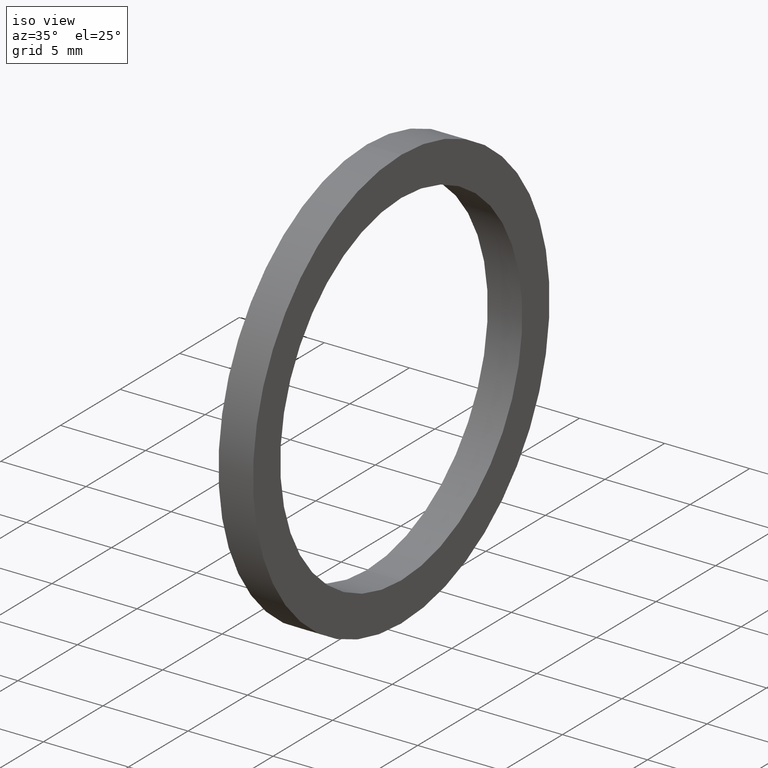
[diagram: clean part render]
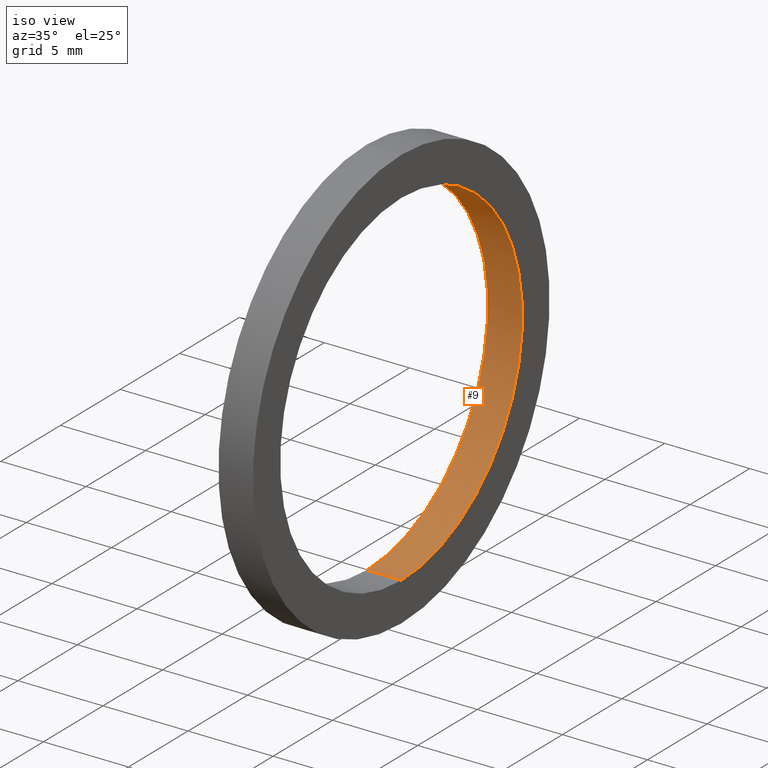
[diagram: same view with one face highlighted and labeled with its STEP entity id]
A machine part, iso view. The second image highlights one B-rep face of the part: STEP entity #9.
In plain terms, the highlighted cylindrical surface (partial cylindrical patch) has radius 10.16 mm, axis along (-1, 0, 0).
Its self-contained STEP definition (entity closure, byte-faithful):
#4 = ORIENTED_EDGE ( 'NONE', *, *, #35, .T. ) ;
#5 = ORIENTED_EDGE ( 'NONE', *, *, #138, .T. ) ;
#9 = ADVANCED_FACE ( 'NONE', ( #28 ), #25, .F. ) ;
#11 = ORIENTED_EDGE ( 'NONE', *, *, #156, .F. ) ;
#25 = CYLINDRICAL_SURFACE ( 'NONE', #107, 0.4000000000000000200 ) ;
#27 = CARTESIAN_POINT ( 'NONE',  ( -1.721125226614714300, 0.0000000000000000000, 0.0000000000000000000 ) ) ;
#28 = FACE_OUTER_BOUND ( 'NONE', #41, .T. ) ;
#31 = EDGE_CURVE ( 'NONE', #110, #111, #141, .T. ) ;
#35 = EDGE_CURVE ( 'NONE', #110, #37, #93, .T. ) ;
#37 = VERTEX_POINT ( 'NONE', #89 ) ;
#41 = EDGE_LOOP ( 'NONE', ( #11, #43, #4, #5 ) ) ;
#43 = ORIENTED_EDGE ( 'NONE', *, *, #31, .F. ) ;
#59 = DIRECTION ( 'NONE',  ( 0.0000000000000000000, 0.0000000000000000000, 1.000000000000000000 ) ) ;
#60 = DIRECTION ( 'NONE',  ( -1.000000000000000000, 0.0000000000000000000, 0.0000000000000000000 ) ) ;
#61 = CARTESIAN_POINT ( 'NONE',  ( 0.0000000000000000000, 0.0000000000000000000, 0.0000000000000000000 ) ) ;
#62 = AXIS2_PLACEMENT_3D ( 'NONE', #61, #60, #59 ) ;
#63 = CIRCLE ( 'NONE', #62, 0.4000000000000000200 ) ;
#76 = CARTESIAN_POINT ( 'NONE',  ( 0.07999999999999996000, 4.898587196589413100E-017, -0.4000000000000000200 ) ) ;
#77 = CARTESIAN_POINT ( 'NONE',  ( 0.07999999999999996000, 0.0000000000000000000, 0.4000000000000000200 ) ) ;
#89 = CARTESIAN_POINT ( 'NONE',  ( 0.0000000000000000000, 0.0000000000000000000, 0.4000000000000000200 ) ) ;
#90 = DIRECTION ( 'NONE',  ( -1.000000000000000000, 0.0000000000000000000, 0.0000000000000000000 ) ) ;
#91 = VECTOR ( 'NONE', #90, 39.37007874015748100 ) ;
#92 = CARTESIAN_POINT ( 'NONE',  ( -1.721125226614714300, 0.0000000000000000000, 0.4000000000000000200 ) ) ;
#93 = LINE ( 'NONE', #92, #91 ) ;
#96 = DIRECTION ( 'NONE',  ( 0.0000000000000000000, 0.0000000000000000000, 1.000000000000000000 ) ) ;
#97 = DIRECTION ( 'NONE',  ( -1.000000000000000000, 0.0000000000000000000, 0.0000000000000000000 ) ) ;
#98 = CARTESIAN_POINT ( 'NONE',  ( 0.07999999999999996000, 0.0000000000000000000, 0.0000000000000000000 ) ) ;
#105 = DIRECTION ( 'NONE',  ( 0.0000000000000000000, 0.0000000000000000000, 1.000000000000000000 ) ) ;
#106 = DIRECTION ( 'NONE',  ( -1.000000000000000000, 0.0000000000000000000, 0.0000000000000000000 ) ) ;
#107 = AXIS2_PLACEMENT_3D ( 'NONE', #27, #106, #105 ) ;
#110 = VERTEX_POINT ( 'NONE', #77 ) ;
#111 = VERTEX_POINT ( 'NONE', #76 ) ;
#138 = EDGE_CURVE ( 'NONE', #37, #157, #63, .T. ) ;
#140 = AXIS2_PLACEMENT_3D ( 'NONE', #98, #97, #96 ) ;
#141 = CIRCLE ( 'NONE', #140, 0.4000000000000000200 ) ;
#156 = EDGE_CURVE ( 'NONE', #111, #157, #233, .T. ) ;
#157 = VERTEX_POINT ( 'NONE', #178 ) ;
#178 = CARTESIAN_POINT ( 'NONE',  ( 0.0000000000000000000, 4.898587196589413100E-017, -0.4000000000000000200 ) ) ;
#179 = DIRECTION ( 'NONE',  ( -1.000000000000000000, 0.0000000000000000000, 0.0000000000000000000 ) ) ;
#231 = VECTOR ( 'NONE', #179, 39.37007874015748100 ) ;
#232 = CARTESIAN_POINT ( 'NONE',  ( -1.721125226614714300, 4.898587196589413100E-017, -0.4000000000000000200 ) ) ;
#233 = LINE ( 'NONE', #232, #231 ) ;